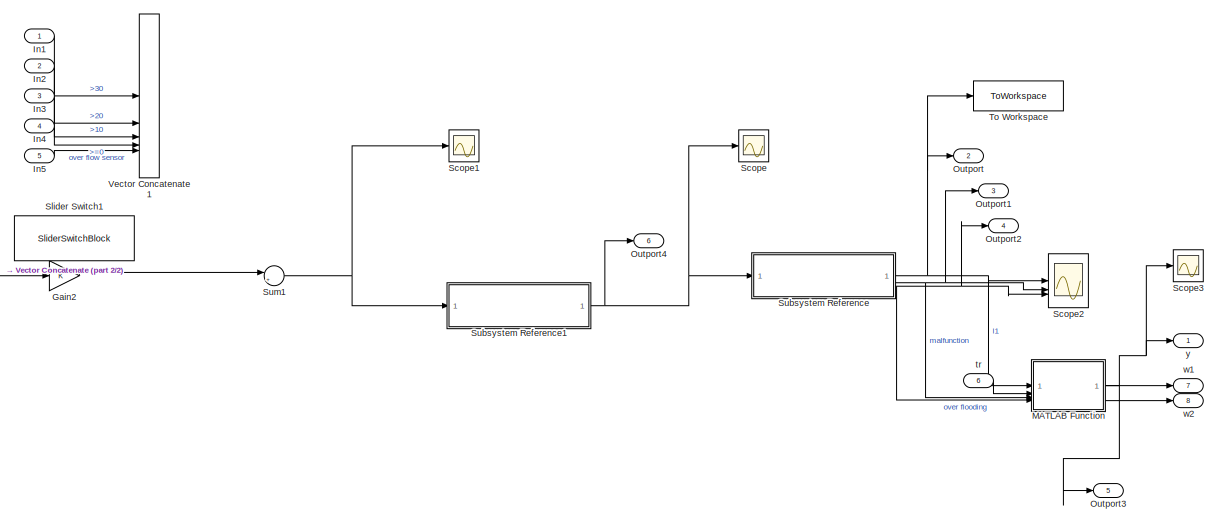
[diagram: root canvas - part 1/2, right side, full height]
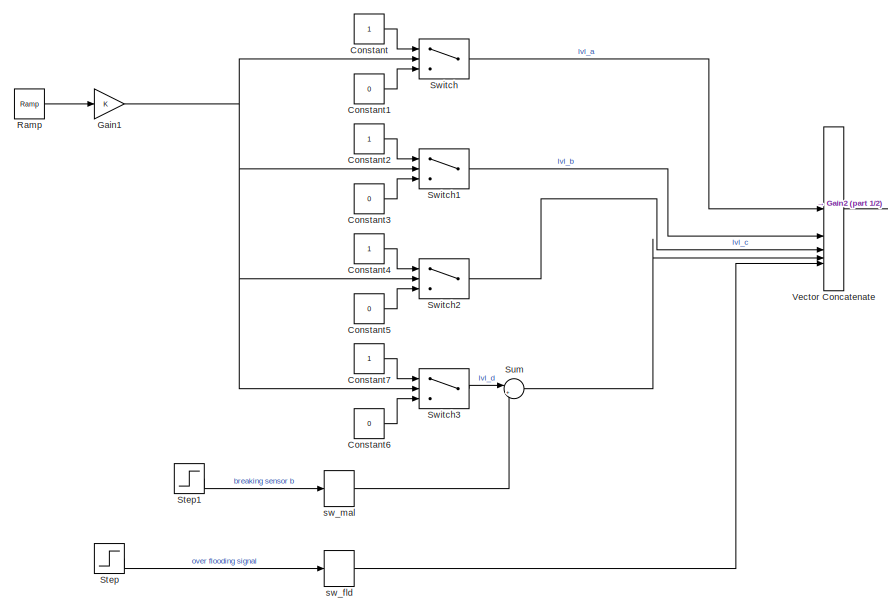
[diagram: root canvas - part 2/2, left side, full height]
MODEL slx_337352e3fa0d
KIND model
CONFIG AbsTol = auto
CONFIG EnableMultiTasking = off
CONFIG FixedStep = auto
CONFIG MaxStep = auto
CONFIG MinStep = auto
CONFIG RelTol = 1e-3
CONFIG SampleTimeConstraint = Unconstrained
CONFIG SolverName = VariableStepAuto
CONFIG StartTime = 0.0
CONFIG StopTime = 10.0
BLOCK [Constant] Constant
BLOCK [Constant] Constant1
  Value = 0
BLOCK [Constant] Constant2
BLOCK [Constant] Constant3
  Value = 0
BLOCK [Constant] Constant4
BLOCK [Constant] Constant5
  Value = 0
BLOCK [Constant] Constant6
  Value = 0
BLOCK [Constant] Constant7
BLOCK [Gain] Gain1
BLOCK [Gain] Gain2
BLOCK [Inport] In1
BLOCK [Inport] In2
  Port = 2
BLOCK [Inport] In3
  Port = 3
BLOCK [Inport] In4
  Port = 4
BLOCK [Inport] In5
  Port = 5
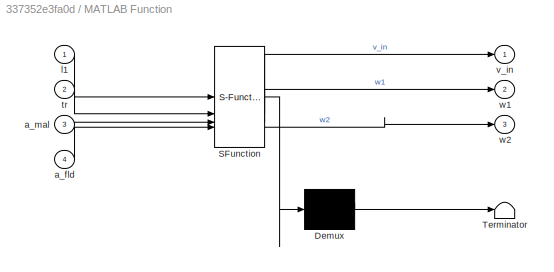
BLOCK [SubSystem] MATLAB Function
  ErrorFcn = Stateflow.Translate.translate
  LibrarySourceBlock = simulink/User-Defined\nFunctions/MATLAB Function
  PermitHierarchicalResolution = ExplicitOnly
  SFBlockType = MATLAB Function
  TreatAsAtomicUnit = on
BLOCK [Demux] MATLAB Function/ Demux 
  Outputs = 1
BLOCK [S-Function] MATLAB Function/ SFunction 
  EnableBusSupport = on
  FunctionName = sf_sfun
  PortCounts = [4 4]
  SFcnIsStateOwnerBlock = off
  SFunctionDeploymentMode = off
  Tag = Stateflow S-Function 3
BLOCK [Terminator] MATLAB Function/ Terminator 
BLOCK [Inport] MATLAB Function/a_fld
  Port = 4
BLOCK [Inport] MATLAB Function/a_mal
  Port = 3
BLOCK [Inport] MATLAB Function/l1
BLOCK [Inport] MATLAB Function/tr
  Port = 2
BLOCK [Outport] MATLAB Function/v_in
BLOCK [Outport] MATLAB Function/w1
  Port = 2
BLOCK [Outport] MATLAB Function/w2
  Port = 3
BLOCK [Outport] Outport
  Port = 2
  SignalName = l1
BLOCK [Outport] Outport1
  Port = 3
  SignalName = q_mal
BLOCK [Outport] Outport2
  Port = 4
  SignalName = q_fld
BLOCK [Outport] Outport3
  Port = 5
  SignalName = v_in
BLOCK [Outport] Outport4
  Port = 6
  SignalName = encoder_out
BLOCK [Reference] Ramp  REF=simulink/Sources/Ramp
  SourceBlock = simulink/Sources/Ramp
  SourceType = Ramp
BLOCK [Scope] Scope
  Floating = off
  NumInputPorts = 1
  ScopeSpecificationString = Simulink.scopes.TimeScopeBlockCfg('CurrentConfiguration', extmgr.ConfigurationSet(extmgr.Configuration('Core','General UI',true),extmgr.Configuration('Core','Source UI',true),extmgr.Configuration('Sources','WiredSimulink',true),extmgr.Configuration('Visuals','Time Domain',true,'SerializedDisplays',{struct('MinYLimReal','-1.25','MaxYLimReal','1.25','YLabelReal','','MinYLimMag','0.00000','MaxYLimMag...<+1322ch>
BLOCK [Scope] Scope1
  Floating = off
  NumInputPorts = 1
  ScopeSpecificationString = Simulink.scopes.TimeScopeBlockCfg('CurrentConfiguration', extmgr.ConfigurationSet(extmgr.Configuration('Core','General UI',true),extmgr.Configuration('Core','Source UI',true),extmgr.Configuration('Sources','WiredSimulink',true,'DataLoggingVariableName','ScopeData1'),extmgr.Configuration('Visuals','Time Domain',true,'SerializedDisplays',{struct('MinYLimReal','-0.125','MaxYLimReal','1.125','YLabelRe...<+1426ch>
BLOCK [Scope] Scope2
  Floating = off
  NumInputPorts = 3
  ScopeSpecificationString = Simulink.scopes.TimeScopeBlockCfg('CurrentConfiguration', extmgr.ConfigurationSet(extmgr.Configuration('Core','General UI',true,'FigureColor',[1 1 1]),extmgr.Configuration('Core','Source UI',true),extmgr.Configuration('Sources','WiredSimulink',true,'DataLoggingVariableName','ScopeData4'),extmgr.Configuration('Visuals','Time Domain',true,'SerializedDisplays',{struct('MinYLimReal','-0.625','MaxYLimR...<+1814ch>
BLOCK [Scope] Scope3
  Floating = off
  NumInputPorts = 1
  ScopeSpecificationString = Simulink.scopes.TimeScopeBlockCfg('CurrentConfiguration', extmgr.ConfigurationSet(extmgr.Configuration('Core','General UI',true),extmgr.Configuration('Core','Source UI',true),extmgr.Configuration('Sources','WiredSimulink',true,'DataLoggingVariableName','ScopeData3'),extmgr.Configuration('Visuals','Time Domain',true,'SerializedDisplays',{struct('MinYLimReal','-1.25','MaxYLimReal','11.25','YLabelRea...<+1391ch>
BLOCK [SliderSwitchBlock] Slider Switch1
BLOCK [Step] Step
  SampleTime = 0
  Time = 7
BLOCK [Step] Step1
  After = -1
  SampleTime = 0
  Time = 7
BLOCK [SubSystem] Subsystem Reference
  ReferencedSubsystem = decoder
BLOCK [SubSystem] Subsystem Reference1
  ReferencedSubsystem = encoder
BLOCK [Sum] Sum
  Inputs = |++
BLOCK [Sum] Sum1
  Inputs = |++
BLOCK [Switch] Switch
  Criteria = u2 > Threshold
  InputSameDT = off
  SaturateOnIntegerOverflow = off
  Threshold = 30
BLOCK [Switch] Switch1
  Criteria = u2 > Threshold
  InputSameDT = off
  SaturateOnIntegerOverflow = off
  Threshold = 20
BLOCK [Switch] Switch2
  Criteria = u2 > Threshold
  InputSameDT = off
  SaturateOnIntegerOverflow = off
  Threshold = 10
BLOCK [Switch] Switch3
  Criteria = u2 > Threshold
  InputSameDT = off
  SaturateOnIntegerOverflow = off
BLOCK [ToWorkspace] To Workspace
  FixptAsFi = on
  MaxDataPoints = inf
  SampleTime = -1
  SaveFormat = Timeseries
  VariableName = simout
BLOCK [Concatenate] Vector Concatenate
  NumInputs = 5
BLOCK [Concatenate] Vector Concatenate1
  NumInputs = 5
BLOCK [ManualSwitch] sw_fld
BLOCK [ManualSwitch] sw_mal
  CurrentSetting = 0
BLOCK [Inport] tr
  Port = 6
BLOCK [Outport] w1
  Port = 7
BLOCK [Outport] w2
  Port = 8
BLOCK [Outport] y
LINE Constant1:1 -> Switch:3
LINE Constant2:1 -> Switch1:1
LINE Constant3:1 -> Switch1:3
LINE Constant4:1 -> Switch2:1
LINE Constant5:1 -> Switch2:3
LINE Constant6:1 -> Switch3:3
LINE Constant7:1 -> Switch3:1
LINE Constant:1 -> Switch:1
NET Gain1:1 -> Switch1:2, Switch2:2, Switch3:2, Switch:2
LINE Gain2:1 -> Sum1:1
LINE In1:1 -> Vector Concatenate1:1
LINE In2:1 -> Vector Concatenate1:2
LINE In3:1 -> Vector Concatenate1:3
LINE In4:1 -> Vector Concatenate1:4
LINE In5:1 -> Vector Concatenate1:5
NET MATLAB Function:1 -> Outport3:1, Scope3:1, y:1
LINE MATLAB Function:2 -> w1:1
LINE MATLAB Function:3 -> w2:1
LINE Ramp:1 -> Gain1:1
LINE Step1:1 -> sw_mal:1
LINE Step:1 -> sw_fld:1
NET Subsystem Reference1:1 -> Outport4:1, Scope:1, Subsystem Reference:1
NET Subsystem Reference:1 -> MATLAB Function:1, Outport:1, Scope2:1, To Workspace:1
NET Subsystem Reference:2 -> MATLAB Function:3, Outport1:1, Scope2:2
NET Subsystem Reference:3 -> MATLAB Function:4, Outport2:1, Scope2:3
NET Sum1:1 -> Scope1:1, Subsystem Reference1:1
LINE Sum:1 -> Vector Concatenate:4
LINE Switch1:1 -> Vector Concatenate:2
LINE Switch2:1 -> Vector Concatenate:3
LINE Switch3:1 -> Sum:1
LINE Switch:1 -> Vector Concatenate:1
LINE Vector Concatenate:1 -> Gain2:1
LINE sw_fld:1 -> Vector Concatenate:5
LINE sw_mal:1 -> Sum:2
LINE tr:1 -> MATLAB Function:2
note: NET lines group one-source signal fan-out (src -> all destinations, sorted); 1:1 wires keep LINE
CHART MATLAB Function states=1 transitions=1
  STATE_LABEL 'eML_blk_kernel()'
  STATE_LABEL 'SCRIPT:\nfunction [v_in, w1, w2] = fcn(l1, tr, a_mal, a_fld)\n    rho = 1; % constant for product with ambient temperature\n    if (l1==3)\n        v_in = 5;\n    elseif (l1==4 || l1==5)\n        v_in = 10;\n    else\n        v_in = 0;\n    end\n    if (l1>= 2 && tr >= 293 * rho)\n        w1 = 1;\n    else\n        w1 = 0;\n    end\n    if (a_mal || a_fld || l1 >= 5)\n        w2 = 1;\n    else\n        w2 = 0;\n    ...<+13ch>'
CHART  states=0 transitions=0
